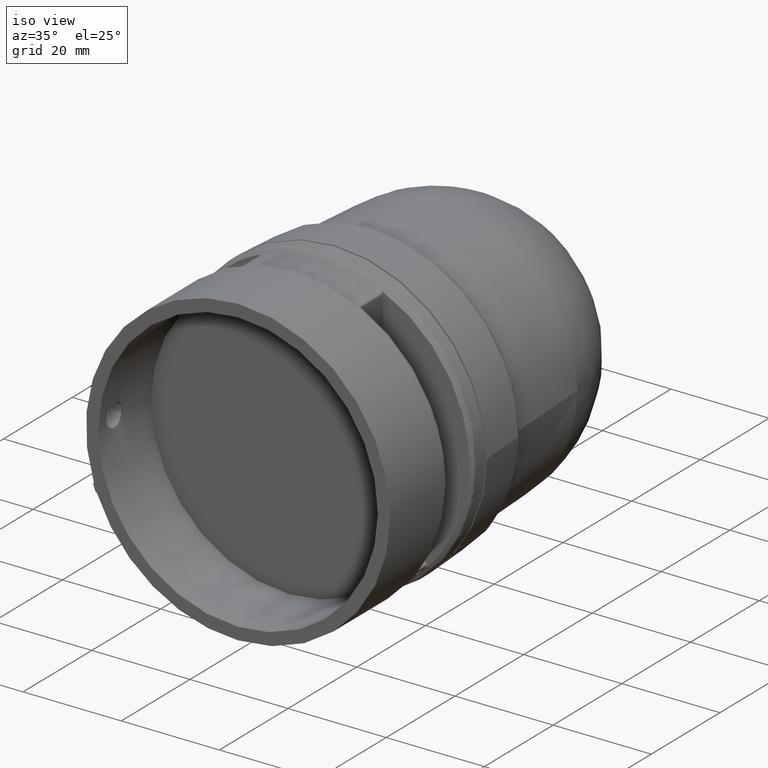
[diagram: clean part render]
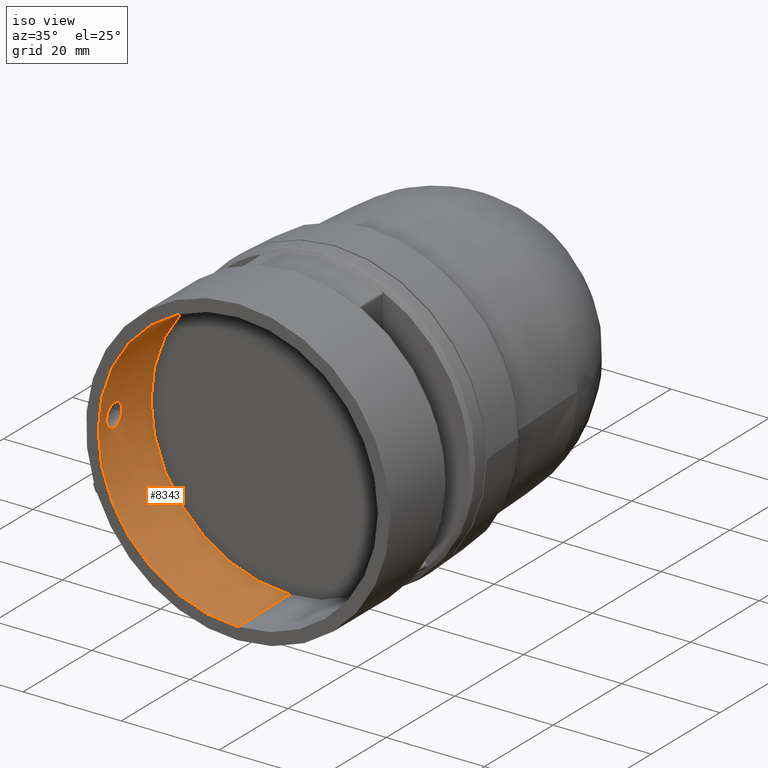
[diagram: same view with one face highlighted and labeled with its STEP entity id]
A machine part, iso view. The second image highlights one B-rep face of the part: STEP entity #8343.
In plain terms, the highlighted conical surface has half-angle 1 deg.
Its self-contained STEP definition (entity closure, byte-faithful):
#111 = CARTESIAN_POINT ( 'NONE',  ( -1.118640639186985641, -0.9291338582677169944, 0.06297320658206308208 ) ) ;
#124 = CARTESIAN_POINT ( 'NONE',  ( -1.117758104495842231, -0.7807885347065638415, -0.01153782958636158373 ) ) ;
#168 = CIRCLE ( 'NONE', #4019, 1.117511676042275637 ) ;
#182 = CARTESIAN_POINT ( 'NONE',  ( -1.111954322102856496, -0.8888817624426531561, 0.1314737879226137718 ) ) ;
#260 = CARTESIAN_POINT ( 'NONE',  ( -1.118102609737719355, -0.8465015199749814645, -0.04368249058905085414 ) ) ;
#282 = CARTESIAN_POINT ( 'NONE',  ( -1.115536598246320121, -0.7637795275590555377, 0.06734363405864211838 ) ) ;
#334 = ORIENTED_EDGE ( 'NONE', *, *, #10638, .F. ) ;
#371 = CARTESIAN_POINT ( 'NONE',  ( -1.114770394520739671, -0.9134375757792438932, 0.1096737286850324594 ) ) ;
#461 = CARTESIAN_POINT ( 'NONE',  ( -1.111455962355947458, -0.7906798647752202314, 0.1206820673142301598 ) ) ;
#590 = EDGE_CURVE ( 'NONE', #5995, #7719, #168, .T. ) ;
#716 = CARTESIAN_POINT ( 'NONE',  ( -1.120043522514499568, -0.9285805367650529218, 0.02828853424737494057 ) ) ;
#736 = CARTESIAN_POINT ( 'NONE',  ( -1.109781159708937759, -0.8465850441947009308, 0.1430058080379448815 ) ) ;
#908 = CARTESIAN_POINT ( 'NONE',  ( -1.119203630613316625, -0.8880819867409491808, -0.03297514656231640556 ) ) ;
#959 = CARTESIAN_POINT ( 'NONE',  ( -1.117936079798009352, -0.8356832291453702988, -0.04311781192981464089 ) ) ;
#1078 = CARTESIAN_POINT ( 'NONE',  ( 0.0000000000000000000, -1.023622047244099553, 0.0000000000000000000 ) ) ;
#1088 = CARTESIAN_POINT ( 'NONE',  ( -1.117761531041069123, -0.8051651816015873431, -0.03264104309023061617 ) ) ;
#1124 = CIRCLE ( 'NONE', #5988, 1.120397946620957264 ) ;
#1306 = CARTESIAN_POINT ( 'NONE',  ( -1.111126917201113784, -0.7948183643386150798, 0.1243016232959583828 ) ) ;
#1418 = VERTEX_POINT ( 'NONE', #8422 ) ;
#1482 = CARTESIAN_POINT ( 'NONE',  ( -1.112558791593194263, -0.7797484374961152209, 0.1081222461457741063 ) ) ;
#1563 = AXIS2_PLACEMENT_3D ( 'NONE', #8172, #3348, #3236 ) ;
#1694 = AXIS2_PLACEMENT_3D ( 'NONE', #4993, #10884, #7130 ) ;
#1704 = CARTESIAN_POINT ( 'NONE',  ( 0.0000000000000000000, -1.023622047244000077, -1.122047244094487750 ) ) ;
#1724 = CARTESIAN_POINT ( 'NONE',  ( -1.118102609737719355, -0.8465015199749814645, -0.04368249058905085414 ) ) ;
#2028 = CARTESIAN_POINT ( 'NONE',  ( -1.110833752859329282, -0.8740027559218300768, 0.1385259010063934482 ) ) ;
#2033 = DIRECTION ( 'NONE',  ( 0.0000000000000000000, -1.000000000000000000, 6.086749038515105649E-17 ) ) ;
#2117 = B_SPLINE_CURVE_WITH_KNOTS ( 'NONE', 3,
 ( #9334, #11293, #716, #2614, #8632, #12434, #12495, #6604, #4519, #3752, #908, #12307, #11068, #10406, #7609, #1724 ),
 .UNSPECIFIED., .F., .F.,
 ( 4, 2, 2, 2, 2, 2, 2, 4 ),
 ( -0.001026724255187412126, -0.0006171837942298617720, -0.0002076433332723114176, 0.0002018971276852388284, 0.0006114375886427892912, 0.001430518510557897156, 0.001840058971515455642, 0.002249599432473014561 ),
 .UNSPECIFIED. ) ;
#2220 = CARTESIAN_POINT ( 'NONE',  ( -1.118308760964036752, -0.9286288326784283287, 0.06846064388421155278 ) ) ;
#2283 = CARTESIAN_POINT ( 'NONE',  ( -1.109879167197957761, -0.8524660398338655964, 0.1430484466272244626 ) ) ;
#2317 = LINE ( 'NONE', #2496, #3430 ) ;
#2467 = ORIENTED_EDGE ( 'NONE', *, *, #5186, .F. ) ;
#2483 = VERTEX_POINT ( 'NONE', #2619 ) ;
#2496 = CARTESIAN_POINT ( 'NONE',  ( 0.0000000000000000000, -1.023622047244099775, -1.122047244094489526 ) ) ;
#2614 = CARTESIAN_POINT ( 'NONE',  ( -1.120223292304855178, -0.9264650388611253007, 0.01774167349642010935 ) ) ;
#2619 = CARTESIAN_POINT ( 'NONE',  ( -1.118102609737719355, -0.8465015199749814645, -0.04368249058905085414 ) ) ;
#2636 = CARTESIAN_POINT ( 'NONE',  ( -1.109775989364748083, -0.8462748040753881318, 0.1430035599081368736 ) ) ;
#2756 = CARTESIAN_POINT ( 'NONE',  ( -1.118925722931066291, -0.9291338582677175495, 0.05741763976033686240 ) ) ;
#2765 = AXIS2_PLACEMENT_3D ( 'NONE', #1078, #2033, #4755 ) ;
#2912 = FACE_BOUND ( 'NONE', #4702, .T. ) ;
#3118 = VERTEX_POINT ( 'NONE', #6251 ) ;
#3139 = ORIENTED_EDGE ( 'NONE', *, *, #11812, .T. ) ;
#3159 = CARTESIAN_POINT ( 'NONE',  ( 1.374111565972425803E-16, -1.023622047244099553, 1.122047244094489526 ) ) ;
#3233 = CARTESIAN_POINT ( 'NONE',  ( -1.112839857854064585, -0.8979257238302920108, 0.1251749329081001394 ) ) ;
#3236 = DIRECTION ( 'NONE',  ( 0.0000000000000000000, 0.0000000000000000000, -1.000000000000000000 ) ) ;
#3287 = CARTESIAN_POINT ( 'NONE',  ( -1.117135538310996212, -0.9251554774644689116, 0.08467966154152323233 ) ) ;
#3318 = CARTESIAN_POINT ( 'NONE',  ( -1.110296617676730824, -0.8086669586466335158, 0.1335317614153873067 ) ) ;
#3344 = B_SPLINE_CURVE_WITH_KNOTS ( 'NONE', 3,
 ( #5894, #2283, #8107, #9001, #2028, #4942, #182, #3233, #10897, #371, #8798, #3287, #5139, #2220, #111, #9821 ),
 .UNSPECIFIED., .F., .F.,
 ( 4, 2, 2, 2, 2, 2, 2, 4 ),
 ( 0.0000000000000000000, 0.0004181211786068061878, 0.0008362423572136123756, 0.001254363535820418509, 0.001672484714427224751, 0.002508727071640837018, 0.002926848250247641742, 0.003344969428854446467 ),
 .UNSPECIFIED. ) ;
#3348 = DIRECTION ( 'NONE',  ( -0.0000000000000000000, 1.000000000000000000, -6.086749038515105649E-17 ) ) ;
#3378 = CIRCLE ( 'NONE', #1563, 1.122047244094487750 ) ;
#3415 = CARTESIAN_POINT ( 'NONE',  ( -1.117211891025262194, -0.7637795257415356254, 0.02809095763113305874 ) ) ;
#3430 = VECTOR ( 'NONE', #8086, 39.37007874015748143 ) ;
#3752 = CARTESIAN_POINT ( 'NONE',  ( -1.119542721248190098, -0.8972151021896963563, -0.02693862302230064926 ) ) ;
#3813 = ORIENTED_EDGE ( 'NONE', *, *, #6502, .F. ) ;
#3995 = CARTESIAN_POINT ( 'NONE',  ( -1.117709667720643507, -0.7747655516321121372, -0.002525370348939889008 ) ) ;
#4019 = AXIS2_PLACEMENT_3D ( 'NONE', #6536, #5348, #9393 ) ;
#4131 = CARTESIAN_POINT ( 'NONE',  ( -1.118007123078409215, -0.8410424859865212044, -0.04368589170553156820 ) ) ;
#4153 = ORIENTED_EDGE ( 'NONE', *, *, #8464, .F. ) ;
#4166 = ORIENTED_EDGE ( 'NONE', *, *, #7493, .F. ) ;
#4219 = CARTESIAN_POINT ( 'NONE',  ( -1.109584368053265324, -0.8347769844647080495, 0.1429202643017933594 ) ) ;
#4388 = CARTESIAN_POINT ( 'NONE',  ( -1.109786328600301131, -0.8468952842568278072, 0.1430080674084968362 ) ) ;
#4393 = CARTESIAN_POINT ( 'NONE',  ( -1.113329016064316557, -0.7740307371282248994, 0.09875666821423581543 ) ) ;
#4434 = CARTESIAN_POINT ( 'NONE',  ( -1.116830915182536854, -0.7637795275638668002, 0.03900059494867618576 ) ) ;
#4463 = DIRECTION ( 'NONE',  ( 0.0000000000000000000, -1.000000000000000000, 0.0000000000000000000 ) ) ;
#4519 = CARTESIAN_POINT ( 'NONE',  ( -1.119941681613235485, -0.9087698002663888719, -0.01550333463173401635 ) ) ;
#4606 = CARTESIAN_POINT ( 'NONE',  ( -1.109786328600301131, -0.8468952842568278072, 0.1430080674084968362 ) ) ;
#4702 = EDGE_LOOP ( 'NONE', ( #8266, #4166, #6849, #334, #5163, #6486, #3813 ) ) ;
#4755 = DIRECTION ( 'NONE',  ( 0.0000000000000000000, -1.217349807703021130E-16, -1.000000000000000000 ) ) ;
#4817 = FACE_OUTER_BOUND ( 'NONE', #7104, .T. ) ;
#4828 = CARTESIAN_POINT ( 'NONE',  ( -1.117801359388019833, -0.8199117142779484002, -0.03933977797344433841 ) ) ;
#4927 = LINE ( 'NONE', #3159, #9387 ) ;
#4942 = CARTESIAN_POINT ( 'NONE',  ( -1.111549027563754510, -0.8840969191854304299, 0.1341429029296131448 ) ) ;
#4957 = CARTESIAN_POINT ( 'NONE',  ( -1.117767076664536230, -0.7918780539174588018, -0.02323413285700379888 ) ) ;
#4993 = CARTESIAN_POINT ( 'NONE',  ( 0.0000000000000000000, -0.4330708661417305150, -3.594536833768806057E-17 ) ) ;
#5112 = CARTESIAN_POINT ( 'NONE',  ( -1.112172437355491539, -0.7831230177437421558, 0.1125880518331991570 ) ) ;
#5139 = CARTESIAN_POINT ( 'NONE',  ( -1.117557436420209660, -0.9266475180353718200, 0.07930464732175729337 ) ) ;
#5163 = ORIENTED_EDGE ( 'NONE', *, *, #10474, .F. ) ;
#5186 = EDGE_CURVE ( 'NONE', #9331, #8246, #2317, .T. ) ;
#5346 = CARTESIAN_POINT ( 'NONE',  ( -1.114853138079804573, -0.7657704932040025891, 0.07823635626051379799 ) ) ;
#5348 = DIRECTION ( 'NONE',  ( -0.0000000000000000000, 1.000000000000000000, -0.0000000000000000000 ) ) ;
#5351 = CIRCLE ( 'NONE', #1694, 1.111739134884912161 ) ;
#5841 = CARTESIAN_POINT ( 'NONE',  ( -1.117762187115199257, -0.7961549224646536915, -0.02668812468332907098 ) ) ;
#5894 = CARTESIAN_POINT ( 'NONE',  ( -1.109786328600301131, -0.8468952842568278072, 0.1430080674084968362 ) ) ;
#5988 = AXIS2_PLACEMENT_3D ( 'NONE', #10351, #4463, #7243 ) ;
#5995 = VERTEX_POINT ( 'NONE', #10072 ) ;
#6013 = CARTESIAN_POINT ( 'NONE',  ( 1.367799669498039395E-16, -0.4330708661417304040, 1.111739134884912161 ) ) ;
#6251 = CARTESIAN_POINT ( 'NONE',  ( -1.109770817567747425, -0.8459645638988887439, 0.1430013230193361018 ) ) ;
#6295 = VERTEX_POINT ( 'NONE', #4388 ) ;
#6422 = CARTESIAN_POINT ( 'NONE',  ( -1.119715427335275848, -0.9291338582513062327, 0.03910132432864862895 ) ) ;
#6486 = ORIENTED_EDGE ( 'NONE', *, *, #590, .F. ) ;
#6502 = EDGE_CURVE ( 'NONE', #2483, #5995, #9319, .T. ) ;
#6536 = CARTESIAN_POINT ( 'NONE',  ( 0.0000000000000000000, -0.7637795275590584243, 0.0000000000000000000 ) ) ;
#6604 = CARTESIAN_POINT ( 'NONE',  ( -1.120053588755604235, -0.9121890237958202308, -0.01135525532571048275 ) ) ;
#6849 = ORIENTED_EDGE ( 'NONE', *, *, #11299, .F. ) ;
#7104 = EDGE_LOOP ( 'NONE', ( #9519, #3139, #4153, #2467 ) ) ;
#7117 = CARTESIAN_POINT ( 'NONE',  ( -1.113716606703851308, -0.7716328162853848260, 0.09381453974037012866 ) ) ;
#7130 = DIRECTION ( 'NONE',  ( 0.0000000000000000000, -6.143185725730221442E-17, -1.000000000000000000 ) ) ;
#7175 = CARTESIAN_POINT ( 'NONE',  ( -1.109770817567747425, -0.8459645638988887439, 0.1430013230193361018 ) ) ;
#7234 = CARTESIAN_POINT ( 'NONE',  ( -1.109729008489118929, -0.8237617203431291113, 0.1403415353038217350 ) ) ;
#7243 = DIRECTION ( 'NONE',  ( 1.000000000000000000, -7.314850947121050900E-16, 0.0000000000000000000 ) ) ;
#7493 = EDGE_CURVE ( 'NONE', #10675, #9790, #1124, .T. ) ;
#7609 = CARTESIAN_POINT ( 'NONE',  ( -1.118198453779249979, -0.8519575680171765919, -0.04366894989711048863 ) ) ;
#7719 = VERTEX_POINT ( 'NONE', #11130 ) ;
#7796 = CARTESIAN_POINT ( 'NONE',  ( -1.117833232896425999, -0.8251436650313181964, -0.04095711408155151834 ) ) ;
#7829 = CONICAL_SURFACE ( 'NONE', #2765, 1.122047244094489526, 0.01745329251994341691 ) ;
#8086 = DIRECTION ( 'NONE',  ( 0.0000000000000000000, -0.9998476951563912696, -0.01745240643728357063 ) ) ;
#8107 = CARTESIAN_POINT ( 'NONE',  ( -1.110049516041097029, -0.8579312501886322551, 0.1424763833430853777 ) ) ;
#8172 = CARTESIAN_POINT ( 'NONE',  ( 0.0000000000000000000, -1.023622047244000077, -6.061146385691543874E-30 ) ) ;
#8246 = VERTEX_POINT ( 'NONE', #1704 ) ;
#8266 = ORIENTED_EDGE ( 'NONE', *, *, #8806, .F. ) ;
#8343 = ADVANCED_FACE ( 'NONE', ( #2912, #4817 ), #7829, .F. ) ;
#8422 = CARTESIAN_POINT ( 'NONE',  ( 1.374111565972423584E-16, -1.023622047244000077, 1.122047244094487750 ) ) ;
#8464 = EDGE_CURVE ( 'NONE', #8246, #1418, #3378, .T. ) ;
#8632 = CARTESIAN_POINT ( 'NONE',  ( -1.120265157841027648, -0.9248847063810565761, 0.01251521576047884450 ) ) ;
#8654 = CARTESIAN_POINT ( 'NONE',  ( -1.109770817567747425, -0.8459645638988887439, 0.1430013230193361018 ) ) ;
#8741 = VERTEX_POINT ( 'NONE', #6013 ) ;
#8781 = DIRECTION ( 'NONE',  ( 2.137303368083806334E-18, -0.9998476951563912696, 0.01745240643728369553 ) ) ;
#8791 = B_SPLINE_CURVE_WITH_KNOTS ( 'NONE', 3,
 ( #8654, #2636, #736, #4606 ),
 .UNSPECIFIED., .F., .F.,
 ( 4, 4 ),
 ( 3.133914718135590570E-08, 0.9999869254636842841 ),
 .UNSPECIFIED. ) ;
#8798 = CARTESIAN_POINT ( 'NONE',  ( -1.115795911652457617, -0.9193153619164415868, 0.1000651668904774111 ) ) ;
#8806 = EDGE_CURVE ( 'NONE', #9790, #2483, #2117, .T. ) ;
#8813 = CARTESIAN_POINT ( 'NONE',  ( -1.117764903576921709, -0.7842168625643325397, -0.01567442460617991112 ) ) ;
#9001 = CARTESIAN_POINT ( 'NONE',  ( -1.110524477396698462, -0.8686719581387382094, 0.1402301892330588828 ) ) ;
#9154 = CARTESIAN_POINT ( 'NONE',  ( -1.110547704074601461, -0.8037880508804378099, 0.1307204670955235681 ) ) ;
#9319 = B_SPLINE_CURVE_WITH_KNOTS ( 'NONE', 3,
 ( #260, #4131, #959, #7796, #4828, #12546, #1088, #5841, #4957, #8813, #124, #3995, #10031, #12032, #3415, #4434 ),
 .UNSPECIFIED., .F., .F.,
 ( 4, 2, 2, 2, 2, 2, 2, 4 ),
 ( -0.002256079652688143793, -0.001845994795084446955, -0.001435909937480750118, -0.001025825079877053280, -0.0006157402222733564419, -0.0002056553646696598209, 0.0002044294929340372338, 0.001024599208141435246 ),
 .UNSPECIFIED. ) ;
#9331 = VERTEX_POINT ( 'NONE', #11589 ) ;
#9334 = CARTESIAN_POINT ( 'NONE',  ( -1.119715427335275848, -0.9291338582513062327, 0.03910132432864862895 ) ) ;
#9387 = VECTOR ( 'NONE', #8781, 39.37007874015748143 ) ;
#9393 = DIRECTION ( 'NONE',  ( 1.000000000000000000, 1.100061523744126628E-15, 0.0000000000000000000 ) ) ;
#9519 = ORIENTED_EDGE ( 'NONE', *, *, #12242, .F. ) ;
#9790 = VERTEX_POINT ( 'NONE', #6422 ) ;
#9821 = CARTESIAN_POINT ( 'NONE',  ( -1.118925722931066291, -0.9291338582677175495, 0.05741763976033686240 ) ) ;
#10031 = CARTESIAN_POINT ( 'NONE',  ( -1.117666963194877239, -0.7721799556054654845, 0.002348057064386419122 ) ) ;
#10072 = CARTESIAN_POINT ( 'NONE',  ( -1.116830915182536854, -0.7637795275638668002, 0.03900059494867618576 ) ) ;
#10351 = CARTESIAN_POINT ( 'NONE',  ( 0.0000000000000000000, -0.9291338582677191038, 0.0000000000000000000 ) ) ;
#10406 = CARTESIAN_POINT ( 'NONE',  ( -1.118316890842267597, -0.8573885738704953852, -0.04307532009986470012 ) ) ;
#10474 = EDGE_CURVE ( 'NONE', #7719, #3118, #12395, .T. ) ;
#10638 = EDGE_CURVE ( 'NONE', #3118, #6295, #8791, .T. ) ;
#10675 = VERTEX_POINT ( 'NONE', #2756 ) ;
#10884 = DIRECTION ( 'NONE',  ( 0.0000000000000000000, -1.000000000000000000, 6.086749038515105649E-17 ) ) ;
#10897 = CARTESIAN_POINT ( 'NONE',  ( -1.113317822006778535, -0.9021465338820353619, 0.1215547642824303110 ) ) ;
#11068 = CARTESIAN_POINT ( 'NONE',  ( -1.118583170661771709, -0.8679146418505404581, -0.04087938392444270819 ) ) ;
#11130 = CARTESIAN_POINT ( 'NONE',  ( -1.116098132167252288, -0.7637795275590567590, 0.05618990535305799783 ) ) ;
#11293 = CARTESIAN_POINT ( 'NONE',  ( -1.119905870519179114, -0.9291338598298704010, 0.03364783556921522450 ) ) ;
#11299 = EDGE_CURVE ( 'NONE', #6295, #10675, #3344, .T. ) ;
#11589 = CARTESIAN_POINT ( 'NONE',  ( 0.0000000000000000000, -0.4330708661417305705, -1.111739134884912161 ) ) ;
#11812 = EDGE_CURVE ( 'NONE', #8741, #1418, #4927, .T. ) ;
#11994 = CARTESIAN_POINT ( 'NONE',  ( -1.116098132167252288, -0.7637795275590567590, 0.05618990535305799783 ) ) ;
#12032 = CARTESIAN_POINT ( 'NONE',  ( -1.117460985566095077, -0.7660034296021738243, 0.01730643834733649675 ) ) ;
#12242 = EDGE_CURVE ( 'NONE', #8741, #9331, #5351, .T. ) ;
#12307 = CARTESIAN_POINT ( 'NONE',  ( -1.118731680025507824, -0.8730508799974696643, -0.03927836489011761467 ) ) ;
#12395 = B_SPLINE_CURVE_WITH_KNOTS ( 'NONE', 3,
 ( #11994, #282, #5346, #7117, #4393, #1482, #5112, #461, #1306, #9154, #3318, #7234, #4219, #7175 ),
 .UNSPECIFIED., .F., .F.,
 ( 4, 2, 2, 2, 2, 2, 4 ),
 ( 9.324138683375338132E-18, 0.0008390019379703539740, 0.001258502906955527275, 0.001678003875940700575, 0.002097504844925874093, 0.002517005813911047177, 0.003356007751881394212 ),
 .UNSPECIFIED. ) ;
#12434 = CARTESIAN_POINT ( 'NONE',  ( -1.120260021033428366, -0.9207399047659480251, 0.002457463574490612208 ) ) ;
#12495 = CARTESIAN_POINT ( 'NONE',  ( -1.120212929210598674, -0.9181659960075262417, -0.002388439245651263233 ) ) ;
#12546 = CARTESIAN_POINT ( 'NONE',  ( -1.117765705061916748, -0.8099162303242480876, -0.03517194509289877508 ) ) ;